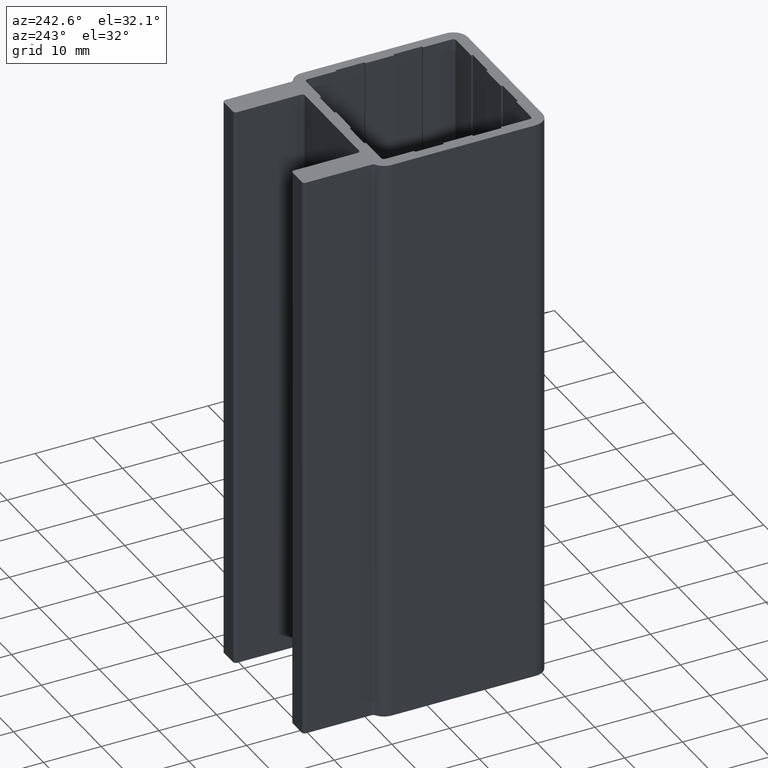
[diagram: clean part render]
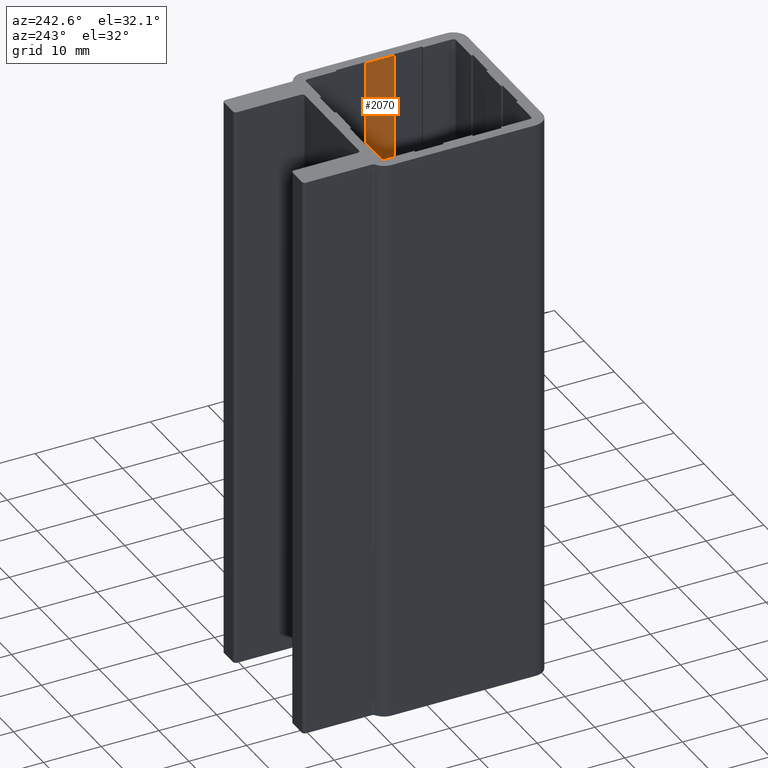
[diagram: same view with one face highlighted and labeled with its STEP entity id]
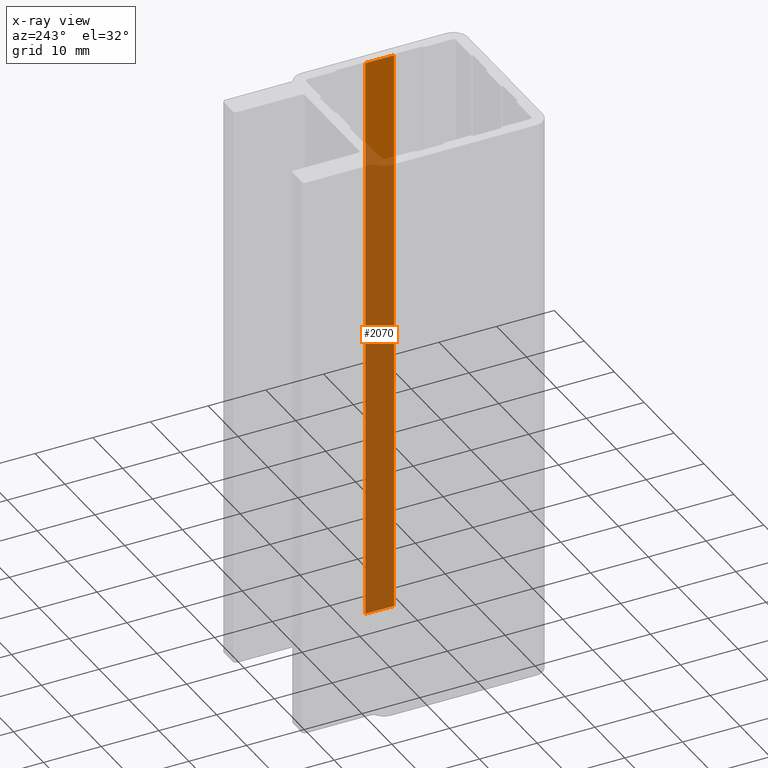
[diagram: x-ray of the same camera — body ghosted, the highlighted face saturated]
A machine part, auxiliary view. The second image highlights one B-rep face of the part: STEP entity #2070.
The next image is the same camera in x-ray: the body ghosted, the highlighted face saturated — about 83% of this face is hidden behind the body in this view.
In plain terms, the highlighted planar face has unit normal (-1, 0, 0).
Its self-contained STEP definition (entity closure, byte-faithful):
#755=CARTESIAN_POINT('',(12.999999999987153,17.499999999982379,100.0));
#756=VERTEX_POINT('',#755);
#763=CARTESIAN_POINT('',(12.999999999987153,12.499999999987494,100.0));
#764=VERTEX_POINT('',#763);
#765=CARTESIAN_POINT('',(12.999999999987153,12.499999999987494,100.0));
#766=DIRECTION('',(0.0,1.0,0.0));
#767=VECTOR('',#766,4.999999999994884);
#768=LINE('',#765,#767);
#769=EDGE_CURVE('',#764,#756,#768,.T.);
#1387=CARTESIAN_POINT('',(12.999999999987153,12.499999999987494,0.0));
#1388=VERTEX_POINT('',#1387);
#1395=CARTESIAN_POINT('',(12.999999999987153,17.499999999982379,0.0));
#1396=VERTEX_POINT('',#1395);
#1397=CARTESIAN_POINT('',(12.999999999987153,12.499999999987494,0.0));
#1398=DIRECTION('',(0.0,1.0,0.0));
#1399=VECTOR('',#1398,4.999999999994884);
#1400=LINE('',#1397,#1399);
#1401=EDGE_CURVE('',#1388,#1396,#1400,.T.);
#2043=CARTESIAN_POINT('',(12.999999999987153,12.499999999987494,100.0));
#2044=DIRECTION('',(0.0,0.0,-1.0));
#2045=VECTOR('',#2044,100.0);
#2046=LINE('',#2043,#2045);
#2047=EDGE_CURVE('',#764,#1388,#2046,.T.);
#2054=CARTESIAN_POINT('',(12.999999999987153,12.499999999987494,100.0));
#2055=DIRECTION('',(-1.0,0.0,0.0));
#2056=DIRECTION('',(0.0,1.0,0.0));
#2057=AXIS2_PLACEMENT_3D('',#2054,#2055,#2056);
#2058=PLANE('',#2057);
#2059=ORIENTED_EDGE('',*,*,#769,.T.);
#2060=CARTESIAN_POINT('',(12.999999999987153,17.499999999982379,100.0));
#2061=DIRECTION('',(0.0,0.0,-1.0));
#2062=VECTOR('',#2061,100.0);
#2063=LINE('',#2060,#2062);
#2064=EDGE_CURVE('',#756,#1396,#2063,.T.);
#2065=ORIENTED_EDGE('',*,*,#2064,.T.);
#2066=ORIENTED_EDGE('',*,*,#1401,.F.);
#2067=ORIENTED_EDGE('',*,*,#2047,.F.);
#2068=EDGE_LOOP('',(#2059,#2065,#2066,#2067));
#2069=FACE_OUTER_BOUND('',#2068,.T.);
#2070=ADVANCED_FACE('',(#2069),#2058,.T.);